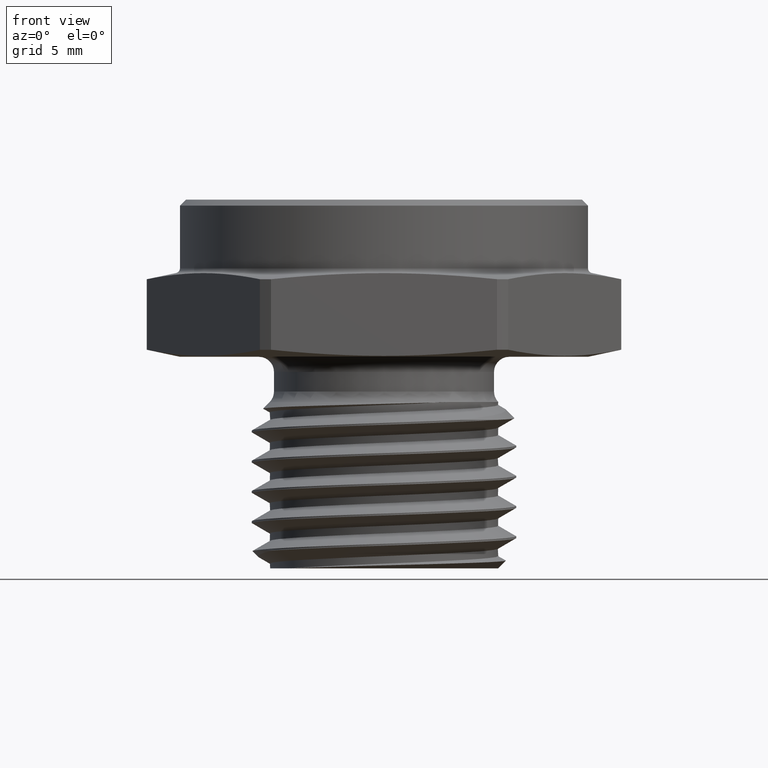
[diagram: clean part render]
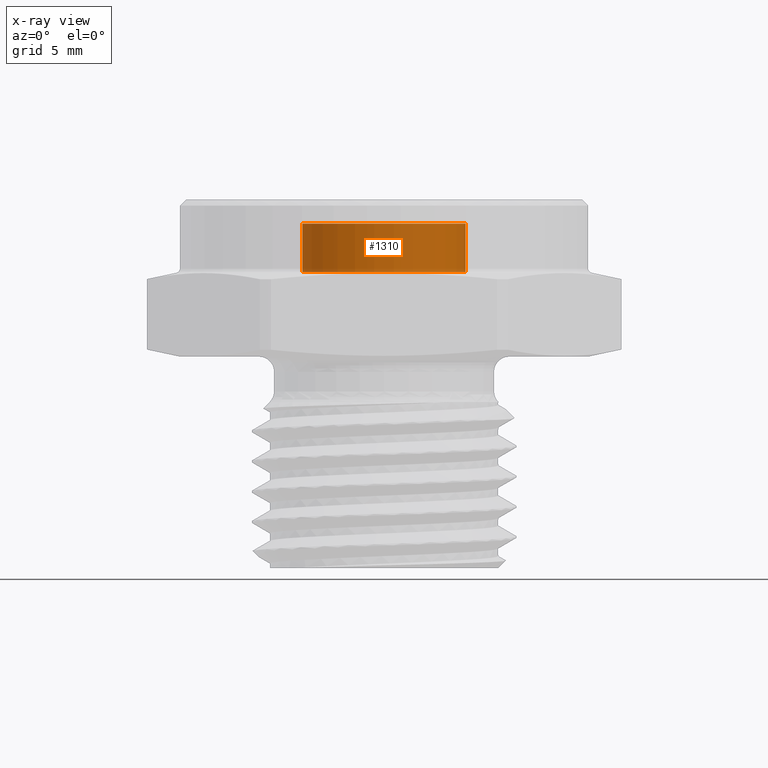
[diagram: x-ray — body ghosted, one internal face saturated and labeled with its STEP entity id]
A machine part, front view, then the same camera in x-ray: the body is ghosted and one INTERNAL B-rep face — a face not visible from any outside direction — is saturated and labeled: STEP entity #1310.
In plain terms, the highlighted cylindrical surface (partial cylindrical patch) has radius 3.429 mm, axis along (-0, -0, 1).
Its self-contained STEP definition (entity closure, byte-faithful):
#74 = ORIENTED_EDGE ( 'NONE', *, *, #198, .T. ) ;
#193 = EDGE_CURVE ( 'NONE', #1657, #364, #2780, .T. ) ;
#196 = EDGE_CURVE ( 'NONE', #2318, #2320, #2784, .T. ) ;
#197 = EDGE_CURVE ( 'NONE', #2318, #1657, #2783, .T. ) ;
#198 = EDGE_CURVE ( 'NONE', #2320, #364, #2786, .T. ) ;
#364 = VERTEX_POINT ( 'NONE', #1009 ) ;
#403 = AXIS2_PLACEMENT_3D ( 'NONE', #631, #632, #633 ) ;
#404 = AXIS2_PLACEMENT_3D ( 'NONE', #635, #636, #637 ) ;
#482 = AXIS2_PLACEMENT_3D ( 'NONE', #1475, #1476, #1474 ) ;
#613 = CARTESIAN_POINT ( 'NONE',  ( -0.1350000000000000100, 1.653273178848926900E-017, 0.1400000000000000400 ) ) ;
#620 = DIRECTION ( 'NONE',  ( -0.0000000000000000000, -0.0000000000000000000, 1.000000000000000000 ) ) ;
#621 = CARTESIAN_POINT ( 'NONE',  ( 0.1350000000000000100, 0.0000000000000000000, 0.1400000000000000400 ) ) ;
#622 = DIRECTION ( 'NONE',  ( -0.0000000000000000000, -0.0000000000000000000, 1.000000000000000000 ) ) ;
#631 = CARTESIAN_POINT ( 'NONE',  ( 0.0000000000000000000, 0.0000000000000000000, 0.1400000000000000400 ) ) ;
#632 = DIRECTION ( 'NONE',  ( 0.0000000000000000000, 0.0000000000000000000, -1.000000000000000000 ) ) ;
#633 = DIRECTION ( 'NONE',  ( -1.000000000000000000, 0.0000000000000000000, 0.0000000000000000000 ) ) ;
#635 = CARTESIAN_POINT ( 'NONE',  ( 0.0000000000000000000, 0.0000000000000000000, 0.2200000000000000600 ) ) ;
#636 = DIRECTION ( 'NONE',  ( 0.0000000000000000000, 0.0000000000000000000, -1.000000000000000000 ) ) ;
#637 = DIRECTION ( 'NONE',  ( -1.000000000000000000, 0.0000000000000000000, 0.0000000000000000000 ) ) ;
#1009 = CARTESIAN_POINT ( 'NONE',  ( -0.1350000000000000100, 1.653273178848926900E-017, 0.2200000000000000600 ) ) ;
#1310 = ADVANCED_FACE ( 'NONE', ( #2947 ), #2950, .T. ) ;
#1474 = DIRECTION ( 'NONE',  ( 1.000000000000000000, 0.0000000000000000000, 0.0000000000000000000 ) ) ;
#1475 = CARTESIAN_POINT ( 'NONE',  ( 0.0000000000000000000, 0.0000000000000000000, 0.1400000000000000400 ) ) ;
#1476 = DIRECTION ( 'NONE',  ( -0.0000000000000000000, -0.0000000000000000000, 1.000000000000000000 ) ) ;
#1546 = CARTESIAN_POINT ( 'NONE',  ( -0.1350000000000000100, 1.653273178848926900E-017, 0.1400000000000000400 ) ) ;
#1562 = CARTESIAN_POINT ( 'NONE',  ( 0.1350000000000000100, 0.0000000000000000000, 0.1400000000000000400 ) ) ;
#1565 = CARTESIAN_POINT ( 'NONE',  ( 0.1350000000000000100, 0.0000000000000000000, 0.2200000000000000600 ) ) ;
#1657 = VERTEX_POINT ( 'NONE', #1546 ) ;
#2318 = VERTEX_POINT ( 'NONE', #1562 ) ;
#2320 = VERTEX_POINT ( 'NONE', #1565 ) ;
#2658 = EDGE_LOOP ( 'NONE', ( #3026, #3027, #3028, #74 ) ) ;
#2780 = LINE ( 'NONE', #613, #2781 ) ;
#2781 = VECTOR ( 'NONE', #620, 39.37007874015748100 ) ;
#2783 = CIRCLE ( 'NONE', #403, 0.1350000000000000100 ) ;
#2784 = LINE ( 'NONE', #621, #2785 ) ;
#2785 = VECTOR ( 'NONE', #622, 39.37007874015748100 ) ;
#2786 = CIRCLE ( 'NONE', #404, 0.1350000000000000100 ) ;
#2947 = FACE_OUTER_BOUND ( 'NONE', #2658, .T. ) ;
#2950 = CYLINDRICAL_SURFACE ( 'NONE', #482, 0.1350000000000000100 ) ;
#3026 = ORIENTED_EDGE ( 'NONE', *, *, #193, .F. ) ;
#3027 = ORIENTED_EDGE ( 'NONE', *, *, #197, .F. ) ;
#3028 = ORIENTED_EDGE ( 'NONE', *, *, #196, .T. ) ;